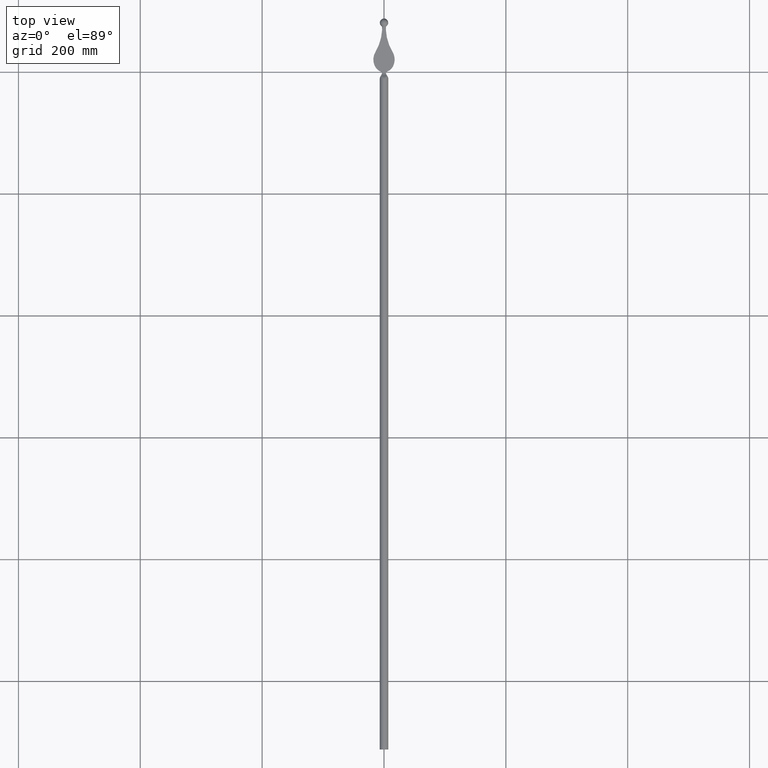
[diagram: clean part render]
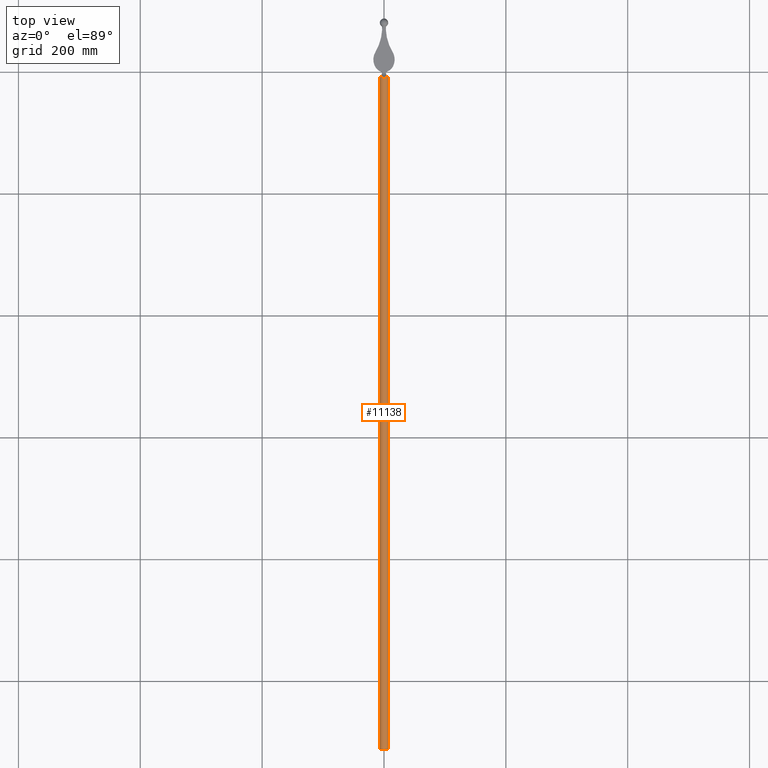
[diagram: same view with one face highlighted and labeled with its STEP entity id]
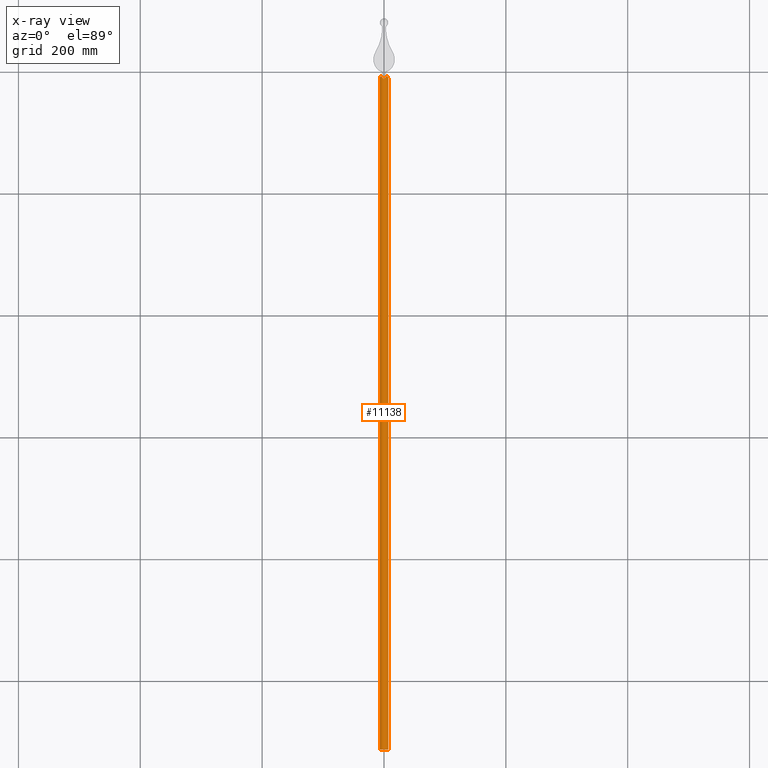
[diagram: x-ray of the same camera — body ghosted, the highlighted face saturated]
A machine part, top view. The second image highlights one B-rep face of the part: STEP entity #11138.
The next image is the same camera in x-ray: the body ghosted, the highlighted face saturated — about 0% of this face is hidden behind the body in this view.
In plain terms, the highlighted cylindrical surface (bore or boss wall) has radius 7 mm, axis along (-0, 1, -0).
Its self-contained STEP definition (entity closure, byte-faithful):
#36 = CARTESIAN_POINT ( 'NONE',  ( 6.990889078583172989, -10.90278456831950393, 0.4119761194312364649 ) ) ;
#195 = CARTESIAN_POINT ( 'NONE',  ( -3.601032407338027763, -8.295978217067252913, -6.007231082863611960 ) ) ;
#236 = B_SPLINE_CURVE_WITH_KNOTS ( 'NONE', 3,
 ( #1658, #13081, #2673, #13225 ),
 .UNSPECIFIED., .F., .F.,
 ( 4, 4 ),
 ( 0.0002603050658564465530, 0.0008030757423356130013 ),
 .UNSPECIFIED. ) ;
#449 = CARTESIAN_POINT ( 'NONE',  ( -6.927562212105124573, -10.29063327554835539, 1.025375620482108507 ) ) ;
#618 = ORIENTED_EDGE ( 'NONE', *, *, #4982, .T. ) ;
#639 = CARTESIAN_POINT ( 'NONE',  ( 4.918530051735223729, -6.945097191544550519, 4.980769230769231726 ) ) ;
#723 = CARTESIAN_POINT ( 'NONE',  ( -6.230720514137688681, -8.090121850958398753, -3.219907812676661596 ) ) ;
#736 = CARTESIAN_POINT ( 'NONE',  ( 0.4368519394276914047, -11.47012089223723486, 6.987208125001822978 ) ) ;
#866 = CARTESIAN_POINT ( 'NONE',  ( 0.000000000000000000, -11.90588089979065956, -6.999999999999999112 ) ) ;
#900 = CARTESIAN_POINT ( 'NONE',  ( -5.211643754330960832, -6.607159816403350483, 4.673196911958996225 ) ) ;
#1010 = CARTESIAN_POINT ( 'NONE',  ( 6.997721231815772214, -11.10810973781505062, -0.2061252531838860813 ) ) ;
#1106 = CARTESIAN_POINT ( 'NONE',  ( 5.022223082579680309, -6.837282975636776783, -4.878371937352527610 ) ) ;
#1195 = CARTESIAN_POINT ( 'NONE',  ( 6.230720514137688681, -8.090121850958400529, 3.219907812676663372 ) ) ;
#1251 = CARTESIAN_POINT ( 'NONE',  ( -5.022223082579696296, -6.837282975636761684, -4.878371937352509846 ) ) ;
#1255 = CARTESIAN_POINT ( 'NONE',  ( 0.000000000000000000, -11.90588089979065956, -6.999999999999999112 ) ) ;
#1335 = CARTESIAN_POINT ( 'NONE',  ( -5.211643754330960832, -6.607159816403350483, 4.673196911958996225 ) ) ;
#1377 = CARTESIAN_POINT ( 'NONE',  ( -6.415230372117283864, -8.480204695306763796, 2.832859701275226794 ) ) ;
#1414 = VERTEX_POINT ( 'NONE', #8952 ) ;
#1495 = CARTESIAN_POINT ( 'NONE',  ( -6.819016418959094494, -9.682264508108861634, 1.634340399252811160 ) ) ;
#1517 = EDGE_CURVE ( 'NONE', #8625, #11643, #11278, .T. ) ;
#1600 = CARTESIAN_POINT ( 'NONE',  ( 0.5456302482834742840, -11.36159657059040562, 6.979553358051853174 ) ) ;
#1644 = CARTESIAN_POINT ( 'NONE',  ( 2.785984726086468299, -9.119194275090162449, 6.425668417621964501 ) ) ;
#1658 = CARTESIAN_POINT ( 'NONE',  ( 5.211643754331003464, -6.607159816403296304, 4.673196911958949151 ) ) ;
#1684 = CARTESIAN_POINT ( 'NONE',  ( 2.156498245788775581, -9.751859827246473600, 6.674819648856122889 ) ) ;
#1716 = B_SPLINE_CURVE_WITH_KNOTS ( 'NONE', 3,
 ( #3444, #8626, #4509, #11775 ),
 .UNSPECIFIED., .F., .F.,
 ( 4, 4 ),
 ( 0.000000000000000000, 0.0005427706764790835069 ),
 .UNSPECIFIED. ) ;
#1734 = CARTESIAN_POINT ( 'NONE',  ( 4.563466248683083037, -7.314272682043250207, 5.331396193128147054 ) ) ;
#1824 = AXIS2_PLACEMENT_3D ( 'NONE', #8996, #3642, #7183 ) ;
#1861 = CARTESIAN_POINT ( 'NONE',  ( -6.954667524027398962, -10.49415214422730891, -0.8214950165848420305 ) ) ;
#1901 = CARTESIAN_POINT ( 'NONE',  ( 0.000000000000000000, -1112.000000000000000, 0.000000000000000000 ) ) ;
#2358 = CARTESIAN_POINT ( 'NONE',  ( -6.230724039167244932, -8.090128500118186849, 3.219901235608641166 ) ) ;
#2376 = CARTESIAN_POINT ( 'NONE',  ( -0.1084423018653053877, -11.79771558469006543, 6.999999999999999112 ) ) ;
#2579 = CARTESIAN_POINT ( 'NONE',  ( 3.401264291240961857, -8.498339333203258406, 6.122399355445248048 ) ) ;
#2608 = VERTEX_POINT ( 'NONE', #10212 ) ;
#2659 = CARTESIAN_POINT ( 'NONE',  ( 0.1084446095771595675, -11.79771328287264254, 7.000000000000001776 ) ) ;
#2673 = CARTESIAN_POINT ( 'NONE',  ( 5.022223082579696296, -6.837282975636761684, 4.878371937352510734 ) ) ;
#2792 = CARTESIAN_POINT ( 'NONE',  ( -5.520922780246231731, -6.963471634839748070, -4.328282684263585978 ) ) ;
#2892 = CARTESIAN_POINT ( 'NONE',  ( 4.563466230837133430, -7.314272700598461796, -5.331396210751088383 ) ) ;
#2976 = CARTESIAN_POINT ( 'NONE',  ( 0.8711504256591275919, -11.03676507346933278, -6.949000411831220525 ) ) ;
#3124 = CARTESIAN_POINT ( 'NONE',  ( 6.954667524027398073, -10.49415214422730891, 0.8214950165848443620 ) ) ;
#3151 = VERTEX_POINT ( 'NONE', #7129 ) ;
#3182 = EDGE_LOOP ( 'NONE', ( #7088 ) ) ;
#3185 = B_SPLINE_CURVE_WITH_KNOTS ( 'NONE', 3,
 ( #866, #11308, #11263, #7176, #7128, #2976, #9215, #3913, #8084, #10341, #4040, #11213, #7036, #13381, #2892, #9083 ),
 .UNSPECIFIED., .F., .F.,
 ( 4, 2, 2, 2, 2, 2, 2, 4 ),
 ( -1.732348335478737451E-05, 0.0004421709483727659829, 0.0009016653801003193369, 0.001820654243555422250, 0.003658631970465627860, 0.004577620833920728605, 0.005496609697375827615, 0.007334587424286035176 ),
 .UNSPECIFIED. ) ;
#3245 = CARTESIAN_POINT ( 'NONE',  ( -0.4368519394276914047, -11.47012089223723486, -6.987208125001822978 ) ) ;
#3313 = CARTESIAN_POINT ( 'NONE',  ( 0.000000000000000000, -1112.000000000000000, -7.000000000000000888 ) ) ;
#3336 = CARTESIAN_POINT ( 'NONE',  ( -1.087079803531975530, -10.82119755048430498, 6.918529058238767071 ) ) ;
#3375 = CARTESIAN_POINT ( 'NONE',  ( -1.731444298147617245, -10.17733491568183446, -6.796561479143643503 ) ) ;
#3381 = CARTESIAN_POINT ( 'NONE',  ( -4.918530051735223729, -6.945097191544551407, 4.980769230769229949 ) ) ;
#3412 = CARTESIAN_POINT ( 'NONE',  ( -5.520924117477223447, -6.963473175426615924, 4.328281192956531243 ) ) ;
#3421 = CARTESIAN_POINT ( 'NONE',  ( -0.2187614532684630797, -11.68767820920156808, -6.997432416653777132 ) ) ;
#3439 = EDGE_CURVE ( 'NONE', #12514, #12207, #11737, .T. ) ;
#3444 = CARTESIAN_POINT ( 'NONE',  ( -4.918530051735223729, -6.945097191544551407, 4.980769230769229949 ) ) ;
#3469 = CARTESIAN_POINT ( 'NONE',  ( -0.2187612007513502488, -11.68767846108336173, 6.997432424637311854 ) ) ;
#3522 = VERTEX_POINT ( 'NONE', #12540 ) ;
#3642 = DIRECTION ( 'NONE',  ( -0.000000000000000000, 1.000000000000000000, -0.000000000000000000 ) ) ;
#3671 = EDGE_CURVE ( 'NONE', #11643, #8793, #236, .T. ) ;
#3856 = FACE_OUTER_BOUND ( 'NONE', #3182, .T. ) ;
#3901 = ORIENTED_EDGE ( 'NONE', *, *, #3439, .T. ) ;
#3913 = CARTESIAN_POINT ( 'NONE',  ( 1.731444126799000394, -10.17733508713133617, -6.796561524148684974 ) ) ;
#3914 = CARTESIAN_POINT ( 'NONE',  ( -7.000000000000000888, -11.10947621384816841, -0.2047552775256910595 ) ) ;
#4040 = CARTESIAN_POINT ( 'NONE',  ( 2.994109929910925949, -8.909576884696573273, -6.331483110543525861 ) ) ;
#4056 = EDGE_CURVE ( 'NONE', #1414, #12514, #7142, .T. ) ;
#4097 = EDGE_CURVE ( 'NONE', #4137, #4137, #9000, .T. ) ;
#4104 = CARTESIAN_POINT ( 'NONE',  ( 6.819016418959092718, -9.682264508108858081, -1.634340399252809606 ) ) ;
#4136 = ORIENTED_EDGE ( 'NONE', *, *, #1517, .T. ) ;
#4137 = VERTEX_POINT ( 'NONE', #3313 ) ;
#4184 = CARTESIAN_POINT ( 'NONE',  ( 6.415226494646805833, -8.480196103925004891, 2.832868232115322016 ) ) ;
#4302 = VERTEX_POINT ( 'NONE', #900 ) ;
#4400 = CARTESIAN_POINT ( 'NONE',  ( -3.401264210536604882, -8.498339414895738742, 6.122399400693486093 ) ) ;
#4437 = VERTEX_POINT ( 'NONE', #10243 ) ;
#4479 = CARTESIAN_POINT ( 'NONE',  ( -0.8711506430419675429, -11.03676485647924999, -6.949000384232733474 ) ) ;
#4509 = CARTESIAN_POINT ( 'NONE',  ( -5.119767493159824490, -6.724673029892692888, 4.775659177454080861 ) ) ;
#4512 = CARTESIAN_POINT ( 'NONE',  ( -6.988637894929779826, -10.90299945224853317, 0.4117407336623900571 ) ) ;
#4561 = CARTESIAN_POINT ( 'NONE',  ( -6.710595925880994628, -9.279659356411031013, 2.036707424740891170 ) ) ;
#4790 = CARTESIAN_POINT ( 'NONE',  ( 3.601032407338027763, -8.295978217067252913, 6.007231082863611960 ) ) ;
#4970 = CARTESIAN_POINT ( 'NONE',  ( -4.918530051735223729, -6.945097191544551407, -4.980769230769229949 ) ) ;
#4982 = EDGE_CURVE ( 'NONE', #13080, #2608, #3185, .T. ) ;
#5049 = CARTESIAN_POINT ( 'NONE',  ( 6.927562212105122796, -10.29063327554835539, -1.025375620482107841 ) ) ;
#5405 = CARTESIAN_POINT ( 'NONE',  ( -2.785984726086468299, -9.119194275090162449, -6.425668417621964501 ) ) ;
#5448 = CARTESIAN_POINT ( 'NONE',  ( -4.188122526463240902, -7.698977526222796186, -5.628202948527777139 ) ) ;
#5548 = CARTESIAN_POINT ( 'NONE',  ( -0.8711504256591275919, -11.03676507346933278, 6.949000411831220525 ) ) ;
#5587 = CARTESIAN_POINT ( 'NONE',  ( -4.563466230837133430, -7.314272700598461796, 5.331396210751088383 ) ) ;
#5604 = EDGE_LOOP ( 'NONE', ( #6660, #8575, #5654, #3901, #7522, #618, #10128, #5613, #4136, #10217, #9249, #12937 ) ) ;
#5613 = ORIENTED_EDGE ( 'NONE', *, *, #10835, .T. ) ;
#5654 = ORIENTED_EDGE ( 'NONE', *, *, #4056, .T. ) ;
#5742 = CARTESIAN_POINT ( 'NONE',  ( -6.981835100688609685, -10.80064547912677142, 0.5143367832091256808 ) ) ;
#5753 = AXIS2_PLACEMENT_3D ( 'NONE', #1901, #13382, #9216 ) ;
#5807 = CARTESIAN_POINT ( 'NONE',  ( 4.188122526463240902, -7.698977526222796186, 5.628202948527777139 ) ) ;
#5856 = CARTESIAN_POINT ( 'NONE',  ( 0.8711506430419675429, -11.03676485647924999, 6.949000384232733474 ) ) ;
#5901 = CARTESIAN_POINT ( 'NONE',  ( 2.994110033383250880, -8.909576780365336290, 6.331483061212517249 ) ) ;
#6138 = CARTESIAN_POINT ( 'NONE',  ( 5.119767493159824490, -6.724673029892692888, -4.775659177454080861 ) ) ;
#6213 = CARTESIAN_POINT ( 'NONE',  ( 6.927559711422083488, -10.29061657756181702, 1.025392343275306262 ) ) ;
#6267 = CARTESIAN_POINT ( 'NONE',  ( -5.119767493159853800, -6.724673029892657361, -4.775659177454048887 ) ) ;
#6553 = CARTESIAN_POINT ( 'NONE',  ( -2.994110033383250880, -8.909576780365336290, -6.331483061212517249 ) ) ;
#6646 = CARTESIAN_POINT ( 'NONE',  ( -1.731444126799000394, -10.17733508713133617, 6.796561524148684974 ) ) ;
#6660 = ORIENTED_EDGE ( 'NONE', *, *, #8754, .T. ) ;
#6693 = EDGE_CURVE ( 'NONE', #4302, #1414, #7508, .T. ) ;
#6756 = CARTESIAN_POINT ( 'NONE',  ( -6.997721231815771326, -11.10810973781505417, 0.2061252531838889956 ) ) ;
#7036 = CARTESIAN_POINT ( 'NONE',  ( 3.601032337665482252, -8.295978287758543956, -6.007231125062138410 ) ) ;
#7037 = CARTESIAN_POINT ( 'NONE',  ( -6.927559711422084376, -10.29061657756181702, -1.025392343275304929 ) ) ;
#7088 = ORIENTED_EDGE ( 'NONE', *, *, #4097, .F. ) ;
#7128 = CARTESIAN_POINT ( 'NONE',  ( 0.5456300133927046714, -11.36159680495066127, -6.979553376500836848 ) ) ;
#7129 = CARTESIAN_POINT ( 'NONE',  ( 5.211643754330960832, -6.607159816403350483, -4.673196911958995337 ) ) ;
#7142 = B_SPLINE_CURVE_WITH_KNOTS ( 'NONE', 3,
 ( #11309, #3914, #11264, #1861, #7037, #7177, #9084, #9171, #723, #12400, #2792, #13290 ),
 .UNSPECIFIED., .F., .F.,
 ( 4, 2, 2, 2, 2, 4 ),
 ( -1.732348335477581420E-05, 0.0008502706960259078916, 0.001717864875406591553, 0.003453053234167963430, 0.005188241592929336392, 0.006923429951690708919 ),
 .UNSPECIFIED. ) ;
#7176 = CARTESIAN_POINT ( 'NONE',  ( 0.4368516986774602651, -11.47012113241692077, -6.987208140143128965 ) ) ;
#7177 = CARTESIAN_POINT ( 'NONE',  ( -6.819012972548583740, -9.682250556973482247, -1.634354347159240994 ) ) ;
#7183 = DIRECTION ( 'NONE',  ( 0.000000000000000000, 0.000000000000000000, 1.000000000000000000 ) ) ;
#7269 = CARTESIAN_POINT ( 'NONE',  ( 7.000000000000001776, -11.10947621384783979, 0.2047552775253679291 ) ) ;
#7282 = CARTESIAN_POINT ( 'NONE',  ( 6.710595925880991963, -9.279659356411027460, -2.036707424740889838 ) ) ;
#7329 = CARTESIAN_POINT ( 'NONE',  ( 6.230724039167246708, -8.090128500118186849, -3.219901235608642498 ) ) ;
#7477 = FACE_OUTER_BOUND ( 'NONE', #5604, .T. ) ;
#7508 = B_SPLINE_CURVE_WITH_KNOTS ( 'NONE', 3,
 ( #1335, #3412, #8633, #2358, #1377, #4561, #1495, #449, #10819, #5742, #4512, #6756, #13053, #10942 ),
 .UNSPECIFIED., .F., .F.,
 ( 4, 2, 2, 2, 2, 2, 4 ),
 ( 1.072867218403649326E-17, 0.001732195150159090199, 0.003464390300318169122, 0.005196585450477246744, 0.006062683025556785121, 0.006495731813096553009, 0.006928780600636320897 ),
 .UNSPECIFIED. ) ;
#7522 = ORIENTED_EDGE ( 'NONE', *, *, #9819, .T. ) ;
#7595 = CARTESIAN_POINT ( 'NONE',  ( -1.087080009336568898, -10.82119734495718077, -6.918529025569137403 ) ) ;
#7694 = CARTESIAN_POINT ( 'NONE',  ( -2.785984610626087044, -9.119194391310303516, 6.425668468040321990 ) ) ;
#7736 = CARTESIAN_POINT ( 'NONE',  ( -0.4368516986774602651, -11.47012113241692077, 6.987208140143128965 ) ) ;
#7924 = CARTESIAN_POINT ( 'NONE',  ( -5.211643754331002576, -6.607159816403294528, -4.673196911958948263 ) ) ;
#7945 = B_SPLINE_CURVE_WITH_KNOTS ( 'NONE', 3,
 ( #12684, #11837, #5448, #195, #9703, #6553, #5405, #11650, #3375, #7595, #4479, #10590, #3245, #3421, #9567, #1255 ),
 .UNSPECIFIED., .F., .F.,
 ( 4, 2, 2, 2, 2, 2, 2, 4 ),
 ( 0.000000000000000000, 0.001838016840087588078, 0.002757025260131381900, 0.003676033680175175289, 0.005514050520262757729, 0.006433058940306548949, 0.006892563150328444993, 0.007352067360350339302 ),
 .UNSPECIFIED. ) ;
#7960 = CARTESIAN_POINT ( 'NONE',  ( 0.2187614532684630797, -11.68767820920156808, 6.997432416653777132 ) ) ;
#8084 = CARTESIAN_POINT ( 'NONE',  ( 2.156498097044339701, -9.751859976388821849, -6.674819698291192260 ) ) ;
#8088 = EDGE_CURVE ( 'NONE', #8793, #3522, #11124, .T. ) ;
#8194 = CARTESIAN_POINT ( 'NONE',  ( 6.415230372117285640, -8.480204695306763796, -2.832859701275226794 ) ) ;
#8323 = CARTESIAN_POINT ( 'NONE',  ( 6.988637894929778049, -10.90299945224852962, -0.4117407336623870595 ) ) ;
#8354 = CARTESIAN_POINT ( 'NONE',  ( 7.000000000000000888, -11.31370849898476827, -1.734723475976807094E-15 ) ) ;
#8368 = CARTESIAN_POINT ( 'NONE',  ( 5.783540173169227749, -7.331945517822089364, -3.967410879234507526 ) ) ;
#8558 = CARTESIAN_POINT ( 'NONE',  ( -3.601032337665482252, -8.295978287758543956, 6.007231125062138410 ) ) ;
#8575 = ORIENTED_EDGE ( 'NONE', *, *, #6693, .T. ) ;
#8625 = VERTEX_POINT ( 'NONE', #9347 ) ;
#8626 = CARTESIAN_POINT ( 'NONE',  ( -5.022223082579680309, -6.837282975636776783, 4.878371937352527610 ) ) ;
#8633 = CARTESIAN_POINT ( 'NONE',  ( -5.783540173169227749, -7.331945517822087588, 3.967410879234507526 ) ) ;
#8754 = EDGE_CURVE ( 'NONE', #4437, #4302, #1716, .T. ) ;
#8793 = VERTEX_POINT ( 'NONE', #12072 ) ;
#8811 = B_SPLINE_CURVE_WITH_KNOTS ( 'NONE', 3,
 ( #13481, #1106, #6138, #9467 ),
 .UNSPECIFIED., .F., .F.,
 ( 4, 4 ),
 ( 0.000000000000000000, 0.0005427706764790835069 ),
 .UNSPECIFIED. ) ;
#8952 = CARTESIAN_POINT ( 'NONE',  ( -7.000000000000000888, -11.31370849898476827, -1.734723475976807094E-15 ) ) ;
#8996 = CARTESIAN_POINT ( 'NONE',  ( 0.000000000000000000, -1112.000000000000000, 0.000000000000000000 ) ) ;
#9000 = CIRCLE ( 'NONE', #5753, 7.000000000000000888 ) ;
#9083 = CARTESIAN_POINT ( 'NONE',  ( 4.918530051735223729, -6.945097191544550519, -4.980769230769231726 ) ) ;
#9084 = CARTESIAN_POINT ( 'NONE',  ( -6.710592140927237992, -9.279647208251214252, -2.036719547770906136 ) ) ;
#9171 = CARTESIAN_POINT ( 'NONE',  ( -6.415226494646804944, -8.480196103925001339, -2.832868232115321128 ) ) ;
#9215 = CARTESIAN_POINT ( 'NONE',  ( 1.087079803531975530, -10.82119755048430498, -6.918529058238767071 ) ) ;
#9216 = DIRECTION ( 'NONE',  ( 0.000000000000000000, 0.000000000000000000, -1.000000000000000000 ) ) ;
#9249 = ORIENTED_EDGE ( 'NONE', *, *, #8088, .T. ) ;
#9251 = CYLINDRICAL_SURFACE ( 'NONE', #1824, 7.000000000000000888 ) ;
#9283 = CARTESIAN_POINT ( 'NONE',  ( 6.981835100688610574, -10.80064547912676609, -0.5143367832091194636 ) ) ;
#9347 = CARTESIAN_POINT ( 'NONE',  ( 7.000000000000000888, -11.31370849898476827, -1.734723475976807094E-15 ) ) ;
#9355 = CARTESIAN_POINT ( 'NONE',  ( 5.520922780246232620, -6.963471634839748958, 4.328282684263586866 ) ) ;
#9370 = CARTESIAN_POINT ( 'NONE',  ( 7.000000000000000888, -11.31370849898476827, -1.734723475976807094E-15 ) ) ;
#9467 = CARTESIAN_POINT ( 'NONE',  ( 5.211643754330960832, -6.607159816403350483, -4.673196911958995337 ) ) ;
#9509 = CARTESIAN_POINT ( 'NONE',  ( -5.211643754331002576, -6.607159816403294528, -4.673196911958948263 ) ) ;
#9567 = CARTESIAN_POINT ( 'NONE',  ( -0.1084446095771595675, -11.79771328287264254, -7.000000000000001776 ) ) ;
#9622 = CARTESIAN_POINT ( 'NONE',  ( 0.000000000000000000, -11.90588089979065956, 6.999999999999999112 ) ) ;
#9703 = CARTESIAN_POINT ( 'NONE',  ( -3.401264291240961857, -8.498339333203258406, -6.122399355445248048 ) ) ;
#9750 = EDGE_CURVE ( 'NONE', #2608, #3151, #8811, .T. ) ;
#9762 = CARTESIAN_POINT ( 'NONE',  ( -2.156498097044339701, -9.751859976388821849, 6.674819698291192260 ) ) ;
#9819 = EDGE_CURVE ( 'NONE', #12207, #13080, #7945, .T. ) ;
#10128 = ORIENTED_EDGE ( 'NONE', *, *, #9750, .T. ) ;
#10168 = CARTESIAN_POINT ( 'NONE',  ( 0.000000000000000000, -11.90588089979065956, -6.999999999999999112 ) ) ;
#10212 = CARTESIAN_POINT ( 'NONE',  ( 4.918530051735223729, -6.945097191544550519, -4.980769230769231726 ) ) ;
#10217 = ORIENTED_EDGE ( 'NONE', *, *, #3671, .T. ) ;
#10243 = CARTESIAN_POINT ( 'NONE',  ( -4.918530051735223729, -6.945097191544551407, 4.980769230769229949 ) ) ;
#10251 = B_SPLINE_CURVE_WITH_KNOTS ( 'NONE', 3,
 ( #11144, #13443, #8368, #7329, #8194, #7282, #4104, #5049, #10276, #9283, #8323, #1010, #11459, #9370 ),
 .UNSPECIFIED., .F., .F.,
 ( 4, 2, 2, 2, 2, 2, 4 ),
 ( 1.072867218403649326E-17, 0.001732195150159088247, 0.003464390300318166086, 0.005196585450477244142, 0.006062683025556783387, 0.006495731813096553009, 0.006928780600636322631 ),
 .UNSPECIFIED. ) ;
#10276 = CARTESIAN_POINT ( 'NONE',  ( 6.954669635719770149, -10.49416976495232134, -0.8214773624848872302 ) ) ;
#10341 = CARTESIAN_POINT ( 'NONE',  ( 2.785984610626087044, -9.119194391310303516, -6.425668468040321990 ) ) ;
#10477 = CARTESIAN_POINT ( 'NONE',  ( 6.710592140927237104, -9.279647208251212476, 2.036719547770907468 ) ) ;
#10576 = CARTESIAN_POINT ( 'NONE',  ( 5.211643754331003464, -6.607159816403296304, 4.673196911958949151 ) ) ;
#10590 = CARTESIAN_POINT ( 'NONE',  ( -0.5456302482834742840, -11.36159657059040562, -6.979553358051853174 ) ) ;
#10694 = CARTESIAN_POINT ( 'NONE',  ( -2.994109929910925949, -8.909576884696573273, 6.331483110543525861 ) ) ;
#10819 = CARTESIAN_POINT ( 'NONE',  ( -6.954669635719771925, -10.49416976495232490, 0.8214773624848922262 ) ) ;
#10835 = EDGE_CURVE ( 'NONE', #3151, #8625, #10251, .T. ) ;
#10871 = CARTESIAN_POINT ( 'NONE',  ( 5.211643754331003464, -6.607159816403296304, 4.673196911958949151 ) ) ;
#10942 = CARTESIAN_POINT ( 'NONE',  ( -7.000000000000000888, -11.31370849898476827, -1.734723475976807094E-15 ) ) ;
#11124 = B_SPLINE_CURVE_WITH_KNOTS ( 'NONE', 3,
 ( #639, #1734, #5807, #4790, #2579, #5901, #1644, #1684, #12146, #13112, #5856, #1600, #736, #7960, #2659, #12239 ),
 .UNSPECIFIED., .F., .F.,
 ( 4, 2, 2, 2, 2, 2, 2, 4 ),
 ( 0.000000000000000000, 0.001838016840087588078, 0.002757025260131381900, 0.003676033680175175289, 0.005514050520262757729, 0.006433058940306548949, 0.006892563150328444993, 0.007352067360350339302 ),
 .UNSPECIFIED. ) ;
#11138 = ADVANCED_FACE ( 'NONE', ( #7477, #3856 ), #9251, .T. ) ;
#11144 = CARTESIAN_POINT ( 'NONE',  ( 5.211643754330960832, -6.607159816403350483, -4.673196911958995337 ) ) ;
#11213 = CARTESIAN_POINT ( 'NONE',  ( 3.401264210536604882, -8.498339414895738742, -6.122399400693486093 ) ) ;
#11263 = CARTESIAN_POINT ( 'NONE',  ( 0.2187612007513502488, -11.68767846108336173, -6.997432424637311854 ) ) ;
#11264 = CARTESIAN_POINT ( 'NONE',  ( -6.990889078583172100, -10.90278456831950038, -0.4119761194312334673 ) ) ;
#11278 = B_SPLINE_CURVE_WITH_KNOTS ( 'NONE', 3,
 ( #8354, #7269, #36, #3124, #6213, #13516, #10477, #4184, #1195, #11536, #9355, #10576 ),
 .UNSPECIFIED., .F., .F.,
 ( 4, 2, 2, 2, 2, 4 ),
 ( -1.732348335477509253E-05, 0.0008502706960259100600, 0.001717864875406595240, 0.003453053234167965599, 0.005188241592929336392, 0.006923429951690706317 ),
 .UNSPECIFIED. ) ;
#11308 = CARTESIAN_POINT ( 'NONE',  ( 0.1084423018653053877, -11.79771558469006543, -6.999999999999999112 ) ) ;
#11309 = CARTESIAN_POINT ( 'NONE',  ( -7.000000000000000888, -11.31370849898476827, -1.734723475976807094E-15 ) ) ;
#11392 = B_SPLINE_CURVE_WITH_KNOTS ( 'NONE', 3,
 ( #9622, #2376, #3469, #7736, #12823, #5548, #3336, #6646, #9762, #7694, #10694, #4400, #8558, #11753, #5587, #3381 ),
 .UNSPECIFIED., .F., .F.,
 ( 4, 2, 2, 2, 2, 2, 2, 4 ),
 ( -1.732348335478737451E-05, 0.0004421709483727659829, 0.0009016653801003193369, 0.001820654243555422250, 0.003658631970465627860, 0.004577620833920728605, 0.005496609697375827615, 0.007334587424286035176 ),
 .UNSPECIFIED. ) ;
#11459 = CARTESIAN_POINT ( 'NONE',  ( 7.000000000000002665, -11.21176850727413310, -0.1022010368243575218 ) ) ;
#11536 = CARTESIAN_POINT ( 'NONE',  ( 5.783537897747256906, -7.331942332548949892, 3.967413998154675436 ) ) ;
#11643 = VERTEX_POINT ( 'NONE', #10871 ) ;
#11650 = CARTESIAN_POINT ( 'NONE',  ( -2.156498245788775581, -9.751859827246473600, -6.674819648856122889 ) ) ;
#11737 = B_SPLINE_CURVE_WITH_KNOTS ( 'NONE', 3,
 ( #9509, #6267, #1251, #13571 ),
 .UNSPECIFIED., .F., .F.,
 ( 4, 4 ),
 ( 0.0002603050658564450351, 0.0008030757423356130013 ),
 .UNSPECIFIED. ) ;
#11753 = CARTESIAN_POINT ( 'NONE',  ( -4.188122488761088391, -7.698977564876170909, 5.628202978433249015 ) ) ;
#11775 = CARTESIAN_POINT ( 'NONE',  ( -5.211643754330960832, -6.607159816403350483, 4.673196911958996225 ) ) ;
#11837 = CARTESIAN_POINT ( 'NONE',  ( -4.563466248683083037, -7.314272682043250207, -5.331396193128147054 ) ) ;
#12072 = CARTESIAN_POINT ( 'NONE',  ( 4.918530051735223729, -6.945097191544550519, 4.980769230769231726 ) ) ;
#12146 = CARTESIAN_POINT ( 'NONE',  ( 1.731444298147617245, -10.17733491568183446, 6.796561479143643503 ) ) ;
#12207 = VERTEX_POINT ( 'NONE', #4970 ) ;
#12239 = CARTESIAN_POINT ( 'NONE',  ( 0.000000000000000000, -11.90588089979065956, 6.999999999999999112 ) ) ;
#12400 = CARTESIAN_POINT ( 'NONE',  ( -5.783537897747256906, -7.331942332548948116, -3.967413998154674548 ) ) ;
#12514 = VERTEX_POINT ( 'NONE', #7924 ) ;
#12540 = CARTESIAN_POINT ( 'NONE',  ( 0.000000000000000000, -11.90588089979065956, 6.999999999999999112 ) ) ;
#12684 = CARTESIAN_POINT ( 'NONE',  ( -4.918530051735223729, -6.945097191544551407, -4.980769230769229949 ) ) ;
#12823 = CARTESIAN_POINT ( 'NONE',  ( -0.5456300133927046714, -11.36159680495066127, 6.979553376500836848 ) ) ;
#12912 = EDGE_CURVE ( 'NONE', #3522, #4437, #11392, .T. ) ;
#12937 = ORIENTED_EDGE ( 'NONE', *, *, #12912, .T. ) ;
#13053 = CARTESIAN_POINT ( 'NONE',  ( -7.000000000000004441, -11.21176850727410290, 0.1022010368243288503 ) ) ;
#13080 = VERTEX_POINT ( 'NONE', #10168 ) ;
#13081 = CARTESIAN_POINT ( 'NONE',  ( 5.119767493159852911, -6.724673029892658249, 4.775659177454049775 ) ) ;
#13112 = CARTESIAN_POINT ( 'NONE',  ( 1.087080009336568898, -10.82119734495718077, 6.918529025569137403 ) ) ;
#13225 = CARTESIAN_POINT ( 'NONE',  ( 4.918530051735223729, -6.945097191544550519, 4.980769230769231726 ) ) ;
#13290 = CARTESIAN_POINT ( 'NONE',  ( -5.211643754331002576, -6.607159816403294528, -4.673196911958948263 ) ) ;
#13381 = CARTESIAN_POINT ( 'NONE',  ( 4.188122488761088391, -7.698977564876170909, -5.628202978433249015 ) ) ;
#13382 = DIRECTION ( 'NONE',  ( 0.000000000000000000, -1.000000000000000000, 0.000000000000000000 ) ) ;
#13443 = CARTESIAN_POINT ( 'NONE',  ( 5.520924117477222559, -6.963473175426616812, -4.328281192956532131 ) ) ;
#13481 = CARTESIAN_POINT ( 'NONE',  ( 4.918530051735223729, -6.945097191544550519, -4.980769230769231726 ) ) ;
#13516 = CARTESIAN_POINT ( 'NONE',  ( 6.819012972548582852, -9.682250556973482247, 1.634354347159242327 ) ) ;
#13571 = CARTESIAN_POINT ( 'NONE',  ( -4.918530051735223729, -6.945097191544551407, -4.980769230769229949 ) ) ;